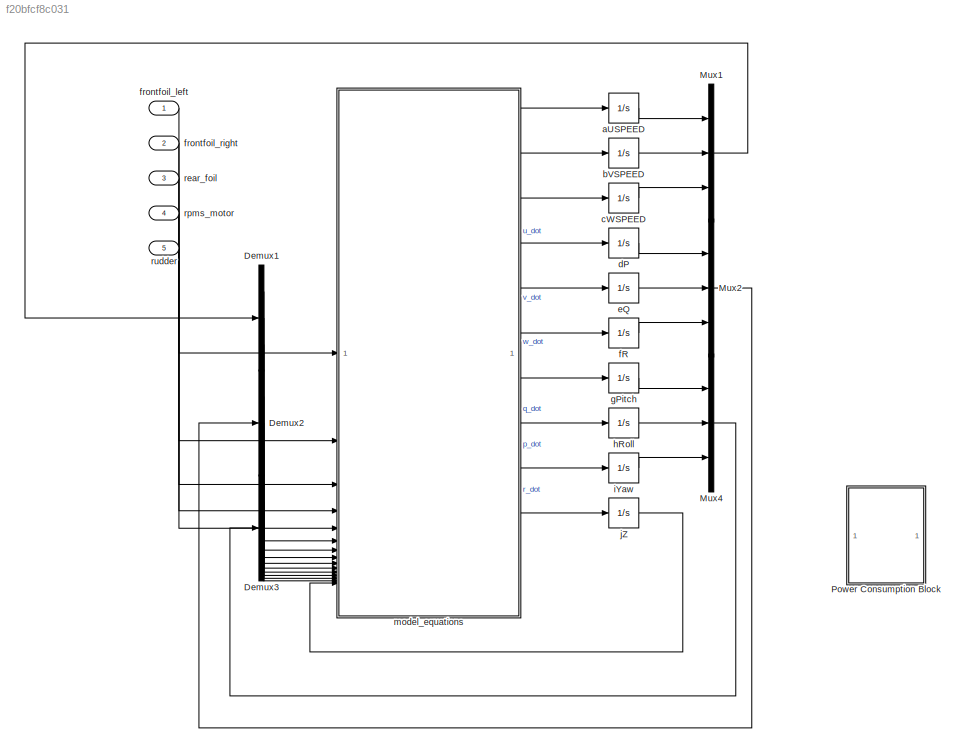
MODEL slx_f20bfcf8c031
KIND model
CONFIG AbsTol = auto
CONFIG EnableMultiTasking = off
CONFIG FixedStep = auto
CONFIG MaxStep = auto
CONFIG MinStep = auto
CONFIG RelTol = 1e-3
CONFIG SampleTimeConstraint = Unconstrained
CONFIG SolverName = VariableStepAuto
CONFIG StartTime = 0.0
CONFIG StopTime = 20
BLOCK [Demux] Demux1
  Outputs = 3
BLOCK [Demux] Demux2
  Outputs = 3
BLOCK [Demux] Demux3
  Outputs = 3
BLOCK [Mux] Mux1
  DisplayOption = bar
  Inputs = 3
BLOCK [Mux] Mux2
  DisplayOption = bar
  Inputs = 3
BLOCK [Mux] Mux4
  DisplayOption = bar
  Inputs = 3
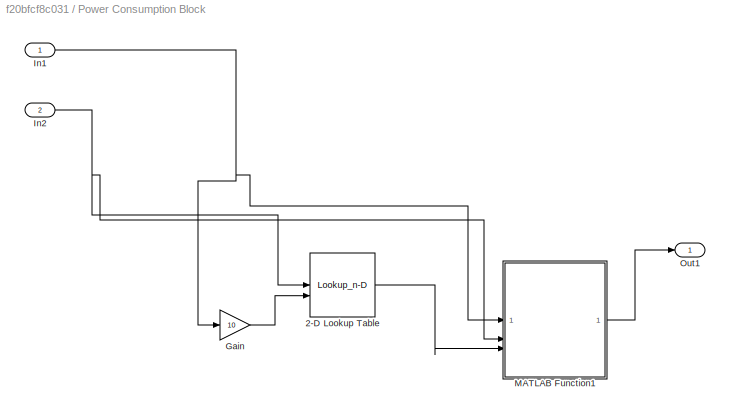
BLOCK [SubSystem] Power Consumption Block
  Commented = on
BLOCK [Lookup_n-D] Power Consumption Block/2-D Lookup Table
  BreakpointsForDimension1 = [1:6000]
  BreakpointsForDimension2 = [1:140]
  InputPortMap = u0,u1
  InternalRulePriority = Speed
  RndMeth = Simplest
  Table = Eff
BLOCK [Gain] Power Consumption Block/Gain
  Gain = 10
BLOCK [Inport] Power Consumption Block/In1
BLOCK [Inport] Power Consumption Block/In2
  Port = 2
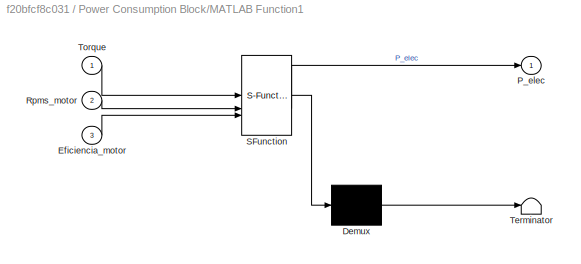
BLOCK [SubSystem] Power Consumption Block/MATLAB Function1
  ErrorFcn = Stateflow.Translate.translate
  PermitHierarchicalResolution = ExplicitOnly
  SFBlockType = MATLAB Function
  TreatAsAtomicUnit = on
BLOCK [Demux] Power Consumption Block/MATLAB Function1/ Demux 
  Outputs = 1
BLOCK [S-Function] Power Consumption Block/MATLAB Function1/ SFunction 
  EnableBusSupport = off
  FunctionName = sf_sfun
  PortCounts = [3 2]
  SFcnIsStateOwnerBlock = off
  SFunctionDeploymentMode = off
  Tag = Stateflow S-Function 8
BLOCK [Terminator] Power Consumption Block/MATLAB Function1/ Terminator 
BLOCK [Inport] Power Consumption Block/MATLAB Function1/Eficiencia_motor
  Port = 3
BLOCK [Outport] Power Consumption Block/MATLAB Function1/P_elec
BLOCK [Inport] Power Consumption Block/MATLAB Function1/Rpms_motor
  Port = 2
BLOCK [Inport] Power Consumption Block/MATLAB Function1/Torque
BLOCK [Outport] Power Consumption Block/Out1
BLOCK [Integrator] aUSPEED
  InitialCondition = initial_uspeed
BLOCK [Integrator] bVSPEED
  InitialCondition = initial_vspeed
BLOCK [Integrator] cWSPEED
  InitialCondition = initial_wspeed
BLOCK [Integrator] dP
  InitialCondition = initial_P
BLOCK [Integrator] eQ
  InitialCondition = initial_Q
BLOCK [Integrator] fR
  InitialCondition = initial_R
BLOCK [Inport] frontfoil_left
BLOCK [Inport] frontfoil_right
  Port = 2
BLOCK [Integrator] gPitch
  InitialCondition = initial_Pitch
BLOCK [Integrator] hRoll
  InitialCondition = initial_ROLL
BLOCK [Integrator] iYaw
  InitialCondition = initial_YAW
BLOCK [Integrator] jZ
  InitialCondition = initial_Z
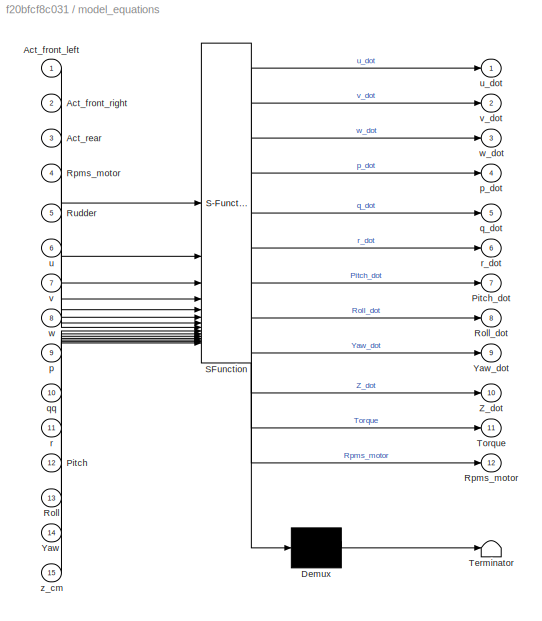
BLOCK [SubSystem] model_equations
  ErrorFcn = Stateflow.Translate.translate
  PermitHierarchicalResolution = ExplicitOnly
  SFBlockType = MATLAB Function
  TreatAsAtomicUnit = on
  VariantControl = Variant1
BLOCK [Demux] model_equations/ Demux 
  Outputs = 1
BLOCK [S-Function] model_equations/ SFunction 
  EnableBusSupport = on
  FunctionName = sf_sfun
  PortCounts = [15 13]
  SFcnIsStateOwnerBlock = off
  SFunctionDeploymentMode = off
  Tag = Stateflow S-Function 9
BLOCK [Terminator] model_equations/ Terminator 
BLOCK [Inport] model_equations/Act_front_left
BLOCK [Inport] model_equations/Act_front_right
  Port = 2
BLOCK [Inport] model_equations/Act_rear
  Port = 3
BLOCK [Inport] model_equations/Pitch
  Port = 12
BLOCK [Outport] model_equations/Pitch_dot
  Port = 7
BLOCK [Inport] model_equations/Roll
  Port = 13
BLOCK [Outport] model_equations/Roll_dot
  Port = 8
BLOCK [Outport] model_equations/Rpms_motor
  Port = 12
BLOCK [Inport] model_equations/Rpms_motor 
  Port = 4
BLOCK [Inport] model_equations/Rudder
  Port = 5
BLOCK [Outport] model_equations/Torque
  Port = 11
BLOCK [Inport] model_equations/Yaw
  Port = 14
BLOCK [Outport] model_equations/Yaw_dot
  Port = 9
BLOCK [Outport] model_equations/Z_dot
  Port = 10
BLOCK [Inport] model_equations/p
  Port = 9
BLOCK [Outport] model_equations/p_dot
  Port = 4
  VectorParamsAs1DForOutWhenUnconnected = off
BLOCK [Outport] model_equations/q_dot
  Port = 5
BLOCK [Inport] model_equations/qq
  Port = 10
BLOCK [Inport] model_equations/r
  Port = 11
BLOCK [Outport] model_equations/r_dot
  Port = 6
BLOCK [Inport] model_equations/u
  Port = 6
BLOCK [Outport] model_equations/u_dot
  VectorParamsAs1DForOutWhenUnconnected = off
BLOCK [Inport] model_equations/v
  Port = 7
BLOCK [Outport] model_equations/v_dot
  Port = 2
BLOCK [Inport] model_equations/w
  Port = 8
BLOCK [Outport] model_equations/w_dot
  Port = 3
  VectorParamsAs1DForOutWhenUnconnected = off
BLOCK [Inport] model_equations/z_cm
  Port = 15
BLOCK [Inport] rear_foil
  Port = 3
BLOCK [Inport] rpms_motor
  Port = 4
BLOCK [Inport] rudder
  Port = 5
LINE Demux1:1 -> model_equations:6
LINE Demux1:2 -> model_equations:7
LINE Demux1:3 -> model_equations:8
LINE Demux2:1 -> model_equations:9
LINE Demux2:2 -> model_equations:10
LINE Demux2:3 -> model_equations:11
LINE Demux3:1 -> model_equations:12
LINE Demux3:2 -> model_equations:13
LINE Demux3:3 -> model_equations:14
LINE Mux1:1 -> Demux1:1
LINE Mux2:1 -> Demux2:1
LINE Mux4:1 -> Demux3:1
LINE Power Consumption Block/2-D Lookup Table:1 -> Power Consumption Block/MATLAB Function1:3
LINE Power Consumption Block/Gain:1 -> Power Consumption Block/2-D Lookup Table:2
NET Power Consumption Block/In1:1 -> Power Consumption Block/Gain:1, Power Consumption Block/MATLAB Function1:1
NET Power Consumption Block/In2:1 -> Power Consumption Block/2-D Lookup Table:1, Power Consumption Block/MATLAB Function1:2
LINE Power Consumption Block/MATLAB Function1:1 -> Power Consumption Block/Out1:1
LINE aUSPEED:1 -> Mux1:1
LINE bVSPEED:1 -> Mux1:2
LINE cWSPEED:1 -> Mux1:3
LINE dP:1 -> Mux2:1
LINE eQ:1 -> Mux2:2
LINE fR:1 -> Mux2:3
LINE frontfoil_left:1 -> model_equations:1
LINE frontfoil_right:1 -> model_equations:2
LINE gPitch:1 -> Mux4:1
LINE hRoll:1 -> Mux4:2
LINE iYaw:1 -> Mux4:3
LINE jZ:1 -> model_equations:15
LINE model_equations:1 -> aUSPEED:1
LINE model_equations:10 -> jZ:1
LINE model_equations:2 -> bVSPEED:1
LINE model_equations:3 -> cWSPEED:1
LINE model_equations:4 -> dP:1
LINE model_equations:5 -> eQ:1
LINE model_equations:6 -> fR:1
LINE model_equations:7 -> gPitch:1
LINE model_equations:8 -> hRoll:1
LINE model_equations:9 -> iYaw:1
LINE rear_foil:1 -> model_equations:3
LINE rpms_motor:1 -> model_equations:4
LINE rudder:1 -> model_equations:5
note: NET lines group one-source signal fan-out (src -> all destinations, sorted); 1:1 wires keep LINE
CHART Power Consumption Block/MATLAB Function1 states=1 transitions=1
  STATE_LABEL 'eML_blk_kernel()'
  STATE_LABEL 'SCRIPT:\nfunction P_elec = fcn(Torque,Rpms_motor,Eficiencia_motor)\nP_mec = Torque*Rpms_motor*2*pi/60;\nP_elec = P_mec/Eficiencia_motor;'
CHART model_equations states=1 transitions=1
  STATE_LABEL 'eML_blk_kernel()'
  STATE_LABEL 'SCRIPT:\nfunction [u_dot,v_dot,w_dot,p_dot,q_dot,r_dot,Pitch_dot,Roll_dot,Yaw_dot,Z_dot,Torque,Rpms_motor] = model_equations(Act_front_left,Act_front_right,Act_rear,Rpms_motor,Rudder,u,v,w,p,qq,r,Pitch,Roll,Yaw,z_cm)\n\n%%%%%%%%%%%%%%%%%%%%%%%%%%%%%%%%%%%%%%%%%%%%%%%%%SS\n%%%%%%%%%%%%%%%% constants %%%%%%%%%%%%%%%%%%%%%%\n%%%%%%%%%%%%%%%%%%%%%%%%%%%%%%%%%%%%%%%%%%%%%%%%%\ng = 9.81; %gravity (m/s^2)\nrho=...<+3608ch>'
CHART  states=0 transitions=0
CHART  states=0 transitions=0
